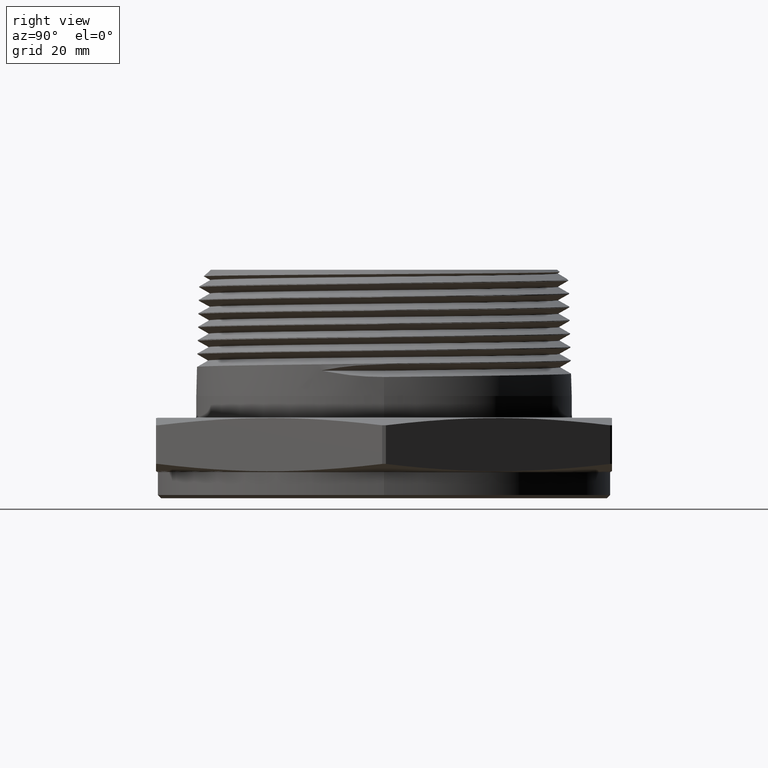
[diagram: clean part render]
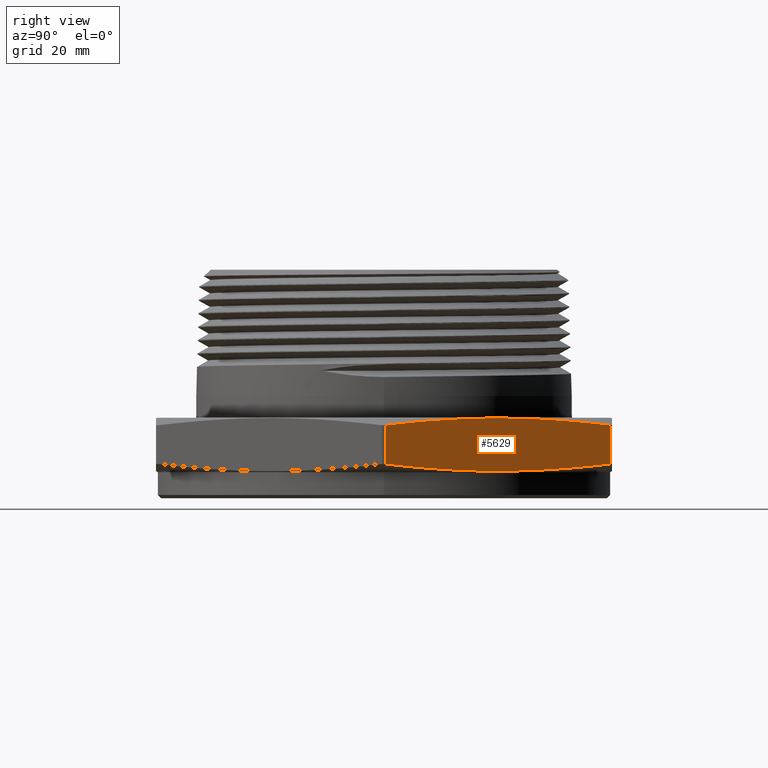
[diagram: same view with one face highlighted and labeled with its STEP entity id]
A machine part, right view. The second image highlights one B-rep face of the part: STEP entity #5629.
In plain terms, the highlighted planar face has unit normal (-0.866, -0.5, 0).
Its self-contained STEP definition (entity closure, byte-faithful):
#432 = CARTESIAN_POINT ( 'NONE',  ( 2.443676496596413300, 0.01742815063309597100, -7.572243879150932400E-017 ) ) ;
#434 = DIRECTION ( 'NONE',  ( -1.254986547952384500E-016, -0.0000000000000000000, -1.000000000000000000 ) ) ;
#442 = CARTESIAN_POINT ( 'NONE',  ( 1.236931469487448300, 2.107571849366903600, 7.572243879150932400E-017 ) ) ;
#447 = DIRECTION ( 'NONE',  ( 1.254986547952384500E-016, 0.0000000000000000000, 1.000000000000000000 ) ) ;
#656 = B_SPLINE_CURVE_WITH_KNOTS ( 'NONE', 3,
 ( #4786, #4781, #4780, #4787, #4788, #4789, #4790, #4791, #4792 ),
 .UNSPECIFIED., .F., .F.,
 ( 4, 2, 1, 2, 4 ),
 ( 1.905392763277774600E-006, 0.01532756723704713000, 0.03065322908133098100, 0.04597889092561482900, 0.06130455276989868500 ),
 .UNSPECIFIED. ) ;
#657 = B_SPLINE_CURVE_WITH_KNOTS ( 'NONE', 3,
 ( #4808, #4803, #4802, #4809, #4810, #4811, #4812, #4813, #4814 ),
 .UNSPECIFIED., .F., .F.,
 ( 4, 2, 1, 2, 4 ),
 ( 1.905392763595266300E-006, 0.01532756723704745000, 0.03065322908133129600, 0.04597889092561514800, 0.06130455276989899700 ),
 .UNSPECIFIED. ) ;
#1211 = CARTESIAN_POINT ( 'NONE',  ( 2.443676496596413300, 0.01742815063309597100, 0.4301244441314126500 ) ) ;
#1212 = CARTESIAN_POINT ( 'NONE',  ( 1.236931469487448500, 2.107571849366904400, 0.06987555586858633400 ) ) ;
#1228 = CARTESIAN_POINT ( 'NONE',  ( 1.236931469487448500, 2.107571849366904400, 0.4301244441314128200 ) ) ;
#1229 = CARTESIAN_POINT ( 'NONE',  ( 2.443676496596413300, 0.01742815063309597100, 0.06987555586858679200 ) ) ;
#1325 = EDGE_CURVE ( 'NONE', #7775, #7793, #7360, .T. ) ;
#1330 = EDGE_CURVE ( 'NONE', #7776, #7792, #7364, .T. ) ;
#1399 = EDGE_CURVE ( 'NONE', #7792, #7775, #656, .T. ) ;
#1405 = EDGE_CURVE ( 'NONE', #7793, #7776, #657, .T. ) ;
#1544 = AXIS2_PLACEMENT_3D ( 'NONE', #4889, #4894, #4895 ) ;
#1613 = ORIENTED_EDGE ( 'NONE', *, *, #1325, .T. ) ;
#1640 = ORIENTED_EDGE ( 'NONE', *, *, #1330, .T. ) ;
#1688 = ORIENTED_EDGE ( 'NONE', *, *, #1405, .T. ) ;
#1692 = ORIENTED_EDGE ( 'NONE', *, *, #1399, .T. ) ;
#4780 = CARTESIAN_POINT ( 'NONE',  ( 1.438055640672276400, 1.759214566244603000, 0.4683426434038138200 ) ) ;
#4781 = CARTESIAN_POINT ( 'NONE',  ( 1.337493555079863200, 1.933393207805754100, 0.4512349939680398400 ) ) ;
#4786 = CARTESIAN_POINT ( 'NONE',  ( 1.236931469487448500, 2.107571849366904400, 0.4301244441314128200 ) ) ;
#4787 = CARTESIAN_POINT ( 'NONE',  ( 1.639179811857103000, 1.410857283122301400, 0.4916964930184515900 ) ) ;
#4788 = CARTESIAN_POINT ( 'NONE',  ( 1.840303983041931400, 1.062500000000000200, 0.5040523757481474300 ) ) ;
#4789 = CARTESIAN_POINT ( 'NONE',  ( 2.041428154226758700, 0.7141427168776989200, 0.4916964930184516400 ) ) ;
#4790 = CARTESIAN_POINT ( 'NONE',  ( 2.242552325411586400, 0.3657854337553973500, 0.4683426434038136000 ) ) ;
#4791 = CARTESIAN_POINT ( 'NONE',  ( 2.343114411004000500, 0.1916067921942465600, 0.4512349939680399000 ) ) ;
#4792 = CARTESIAN_POINT ( 'NONE',  ( 2.443676496596413300, 0.01742815063309597100, 0.4301244441314126500 ) ) ;
#4802 = CARTESIAN_POINT ( 'NONE',  ( 2.242552325411586400, 0.3657854337553976800, 0.03165735659618522400 ) ) ;
#4803 = CARTESIAN_POINT ( 'NONE',  ( 2.343114411004000500, 0.1916067921942468900, 0.04876500603195891400 ) ) ;
#4808 = CARTESIAN_POINT ( 'NONE',  ( 2.443676496596413300, 0.01742815063309597100, 0.06987555586858679200 ) ) ;
#4809 = CARTESIAN_POINT ( 'NONE',  ( 2.041428154226757800, 0.7141427168776989200, 0.008303506981547283100 ) ) ;
#4810 = CARTESIAN_POINT ( 'NONE',  ( 1.840303983041930500, 1.062500000000000400, -0.004052375748148428200 ) ) ;
#4811 = CARTESIAN_POINT ( 'NONE',  ( 1.639179811857103300, 1.410857283122301900, 0.008303506981547317800 ) ) ;
#4812 = CARTESIAN_POINT ( 'NONE',  ( 1.438055640672275800, 1.759214566244604100, 0.03165735659618534200 ) ) ;
#4813 = CARTESIAN_POINT ( 'NONE',  ( 1.337493555079862300, 1.933393207805754300, 0.04876500603195910200 ) ) ;
#4814 = CARTESIAN_POINT ( 'NONE',  ( 1.236931469487448500, 2.107571849366904400, 0.06987555586858633400 ) ) ;
#4888 = PLANE ( 'NONE',  #1544 ) ;
#4889 = CARTESIAN_POINT ( 'NONE',  ( 2.453738644055908600, 1.089657809712985000E-015, 0.5000000000000000000 ) ) ;
#4894 = DIRECTION ( 'NONE',  ( -0.8660254037844386000, -0.5000000000000003300, 0.0000000000000000000 ) ) ;
#4895 = DIRECTION ( 'NONE',  ( 0.5000000000000002200, -0.8660254037844384900, 0.0000000000000000000 ) ) ;
#5629 = ADVANCED_FACE ( 'NONE', ( #7482 ), #4888, .F. ) ;
#7360 = LINE ( 'NONE', #432, #7363 ) ;
#7363 = VECTOR ( 'NONE', #434, 39.37007874015748100 ) ;
#7364 = LINE ( 'NONE', #442, #7371 ) ;
#7371 = VECTOR ( 'NONE', #447, 39.37007874015748100 ) ;
#7482 = FACE_OUTER_BOUND ( 'NONE', #7864, .T. ) ;
#7775 = VERTEX_POINT ( 'NONE', #1211 ) ;
#7776 = VERTEX_POINT ( 'NONE', #1212 ) ;
#7792 = VERTEX_POINT ( 'NONE', #1228 ) ;
#7793 = VERTEX_POINT ( 'NONE', #1229 ) ;
#7864 = EDGE_LOOP ( 'NONE', ( #1688, #1640, #1692, #1613 ) ) ;